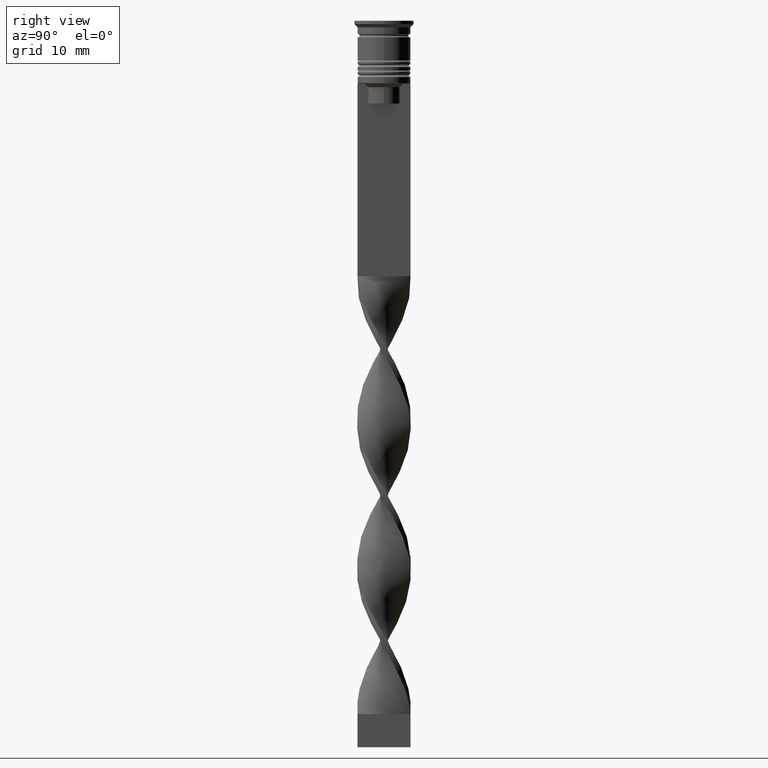
[diagram: clean part render]
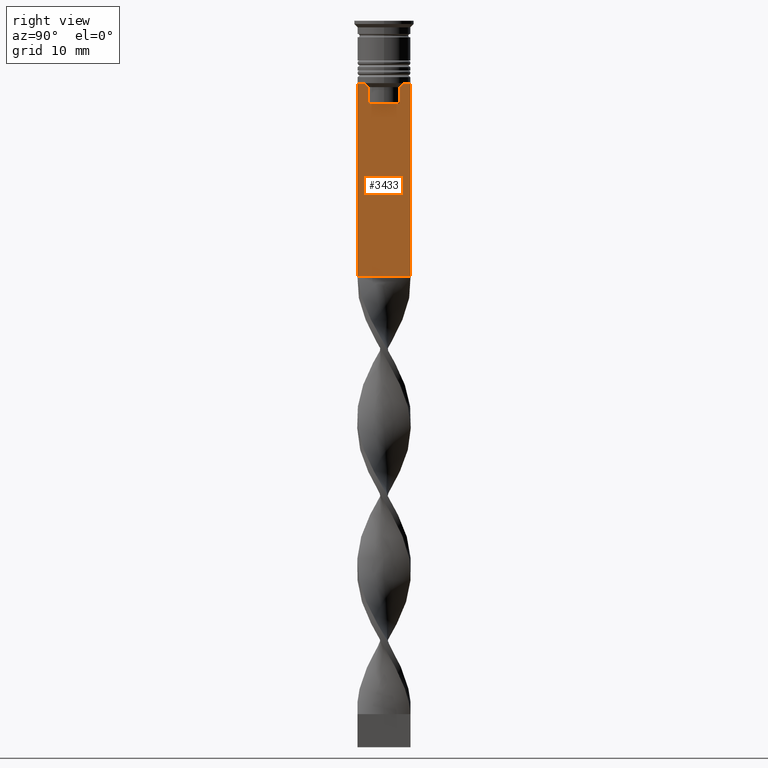
[diagram: same view with one face highlighted and labeled with its STEP entity id]
A machine part, right view. The second image highlights one B-rep face of the part: STEP entity #3433.
In plain terms, the highlighted planar face has unit normal (-1, 0, 0).
Its self-contained STEP definition (entity closure, byte-faithful):
#48 = VECTOR ( 'NONE', #748, 1000.000000000000000 ) ;
#78 = DIRECTION ( 'NONE',  ( 0.000000000000000000, -1.000000000000000000, 0.000000000000000000 ) ) ;
#106 = DIRECTION ( 'NONE',  ( -1.000000000000000000, 0.000000000000000000, 0.000000000000000000 ) ) ;
#226 = CARTESIAN_POINT ( 'NONE',  ( 0.5000000000000000000, -3.867815921162741422, -9.500000000000000000 ) ) ;
#238 = VERTEX_POINT ( 'NONE', #662 ) ;
#242 = CARTESIAN_POINT ( 'NONE',  ( 0.5000000000000000000, -2.347338918861097135, -12.50000000000000000 ) ) ;
#336 = ORIENTED_EDGE ( 'NONE', *, *, #2597, .T. ) ;
#367 = LINE ( 'NONE', #2632, #2457 ) ;
#412 = CARTESIAN_POINT ( 'NONE',  ( 0.5000000000000000000, -2.347338918861097135, 0.000000000000000000 ) ) ;
#421 = CARTESIAN_POINT ( 'NONE',  ( 0.5000000000000000000, 2.347338918861097135, -10.00000000000000000 ) ) ;
#456 = DIRECTION ( 'NONE',  ( 0.000000000000000000, 0.000000000000000000, -1.000000000000000000 ) ) ;
#457 = VECTOR ( 'NONE', #2958, 1000.000000000000000 ) ;
#464 = VERTEX_POINT ( 'NONE', #1693 ) ;
#474 = CARTESIAN_POINT ( 'NONE',  ( 0.5000000000000000000, 2.856571371417138572, -9.500000000000000000 ) ) ;
#506 = VECTOR ( 'NONE', #933, 1000.000000000000000 ) ;
#602 = LINE ( 'NONE', #1554, #2709 ) ;
#610 = ORIENTED_EDGE ( 'NONE', *, *, #1739, .T. ) ;
#662 = CARTESIAN_POINT ( 'NONE',  ( 0.5000000000000000000, -2.856571371417138572, -9.500000000000000000 ) ) ;
#746 = ORIENTED_EDGE ( 'NONE', *, *, #2502, .T. ) ;
#748 = DIRECTION ( 'NONE',  ( 0.000000000000000000, -1.000000000000000000, 0.000000000000000000 ) ) ;
#759 = LINE ( 'NONE', #3017, #1933 ) ;
#820 = ORIENTED_EDGE ( 'NONE', *, *, #2603, .T. ) ;
#882 = CARTESIAN_POINT ( 'NONE',  ( 0.5000000000000000000, 4.000000000000000000, -38.50000000000000000 ) ) ;
#901 = EDGE_CURVE ( 'NONE', #1787, #2049, #1862, .T. ) ;
#933 = DIRECTION ( 'NONE',  ( 0.000000000000000000, 0.000000000000000000, -1.000000000000000000 ) ) ;
#965 = VERTEX_POINT ( 'NONE', #1192 ) ;
#967 = VERTEX_POINT ( 'NONE', #1544 ) ;
#979 = EDGE_CURVE ( 'NONE', #2432, #464, #1810, .T. ) ;
#1033 = CARTESIAN_POINT ( 'NONE',  ( 0.5000000000000000000, -2.517408374291112416, -9.833662228483172285 ) ) ;
#1083 = CARTESIAN_POINT ( 'NONE',  ( 0.5000000000000000000, 2.517407211010872281, -9.833663366238582171 ) ) ;
#1099 = CARTESIAN_POINT ( 'NONE',  ( 0.5000000000000000000, 2.687094542495898075, -9.666938847453439010 ) ) ;
#1141 = LINE ( 'NONE', #1470, #506 ) ;
#1153 = VECTOR ( 'NONE', #1272, 1000.000000000000000 ) ;
#1192 = CARTESIAN_POINT ( 'NONE',  ( 0.5000000000000000000, 2.347338918861097135, -12.50000000000000000 ) ) ;
#1272 = DIRECTION ( 'NONE',  ( 0.000000000000000000, -1.000000000000000000, 0.000000000000000000 ) ) ;
#1285 = VERTEX_POINT ( 'NONE', #2917 ) ;
#1287 = DIRECTION ( 'NONE',  ( 0.000000000000000000, -1.000000000000000000, 0.000000000000000000 ) ) ;
#1306 = CARTESIAN_POINT ( 'NONE',  ( 0.5000000000000000000, -4.000000000000000000, -38.50000000000000000 ) ) ;
#1432 = VERTEX_POINT ( 'NONE', #226 ) ;
#1470 = CARTESIAN_POINT ( 'NONE',  ( 0.5000000000000000000, 2.347338918861097135, 0.000000000000000000 ) ) ;
#1530 = CARTESIAN_POINT ( 'NONE',  ( 0.5000000000000000000, -4.000000000000000000, -38.50000000000000000 ) ) ;
#1544 = CARTESIAN_POINT ( 'NONE',  ( 0.5000000000000000000, -4.000000000000000000, -9.500000000000000000 ) ) ;
#1554 = CARTESIAN_POINT ( 'NONE',  ( 0.5000000000000000000, 4.000000000000000000, -1.437742251701450202 ) ) ;
#1556 = CARTESIAN_POINT ( 'NONE',  ( 0.5000000000000000000, -4.000000000000000000, -9.500000000000000000 ) ) ;
#1581 = LINE ( 'NONE', #1556, #2182 ) ;
#1596 = VECTOR ( 'NONE', #456, 1000.000000000000000 ) ;
#1624 = LINE ( 'NONE', #2475, #1596 ) ;
#1671 = EDGE_CURVE ( 'NONE', #1285, #2049, #602, .T. ) ;
#1693 = CARTESIAN_POINT ( 'NONE',  ( 0.5000000000000000000, 2.856571371417138572, -9.500000000000000000 ) ) ;
#1739 = EDGE_CURVE ( 'NONE', #238, #1432, #367, .T. ) ;
#1754 = VECTOR ( 'NONE', #2096, 1000.000000000000000 ) ;
#1787 = VERTEX_POINT ( 'NONE', #1530 ) ;
#1789 = ORIENTED_EDGE ( 'NONE', *, *, #1671, .F. ) ;
#1810 = LINE ( 'NONE', #2685, #1153 ) ;
#1847 = VERTEX_POINT ( 'NONE', #2427 ) ;
#1862 = LINE ( 'NONE', #1306, #1754 ) ;
#1887 = B_SPLINE_CURVE_WITH_KNOTS ( 'NONE', 3,
 ( #1901, #1033, #3576, #2216 ),
 .UNSPECIFIED., .F., .F.,
 ( 4, 4 ),
 ( 0.01178336557230038467, 0.01249758354768160280 ),
 .UNSPECIFIED. ) ;
#1901 = CARTESIAN_POINT ( 'NONE',  ( 0.5000000000000000000, -2.347338918861097135, -10.00000000000000000 ) ) ;
#1933 = VECTOR ( 'NONE', #1287, 1000.000000000000000 ) ;
#2049 = VERTEX_POINT ( 'NONE', #882 ) ;
#2052 = FACE_OUTER_BOUND ( 'NONE', #2509, .T. ) ;
#2066 = DIRECTION ( 'NONE',  ( 0.000000000000000000, 0.000000000000000000, -1.000000000000000000 ) ) ;
#2096 = DIRECTION ( 'NONE',  ( 0.000000000000000000, 1.000000000000000000, 0.000000000000000000 ) ) ;
#2098 = PLANE ( 'NONE',  #2718 ) ;
#2132 = DIRECTION ( 'NONE',  ( 0.000000000000000000, 0.000000000000000000, 1.000000000000000000 ) ) ;
#2142 = ORIENTED_EDGE ( 'NONE', *, *, #979, .T. ) ;
#2165 = CARTESIAN_POINT ( 'NONE',  ( 0.5000000000000000000, 2.347338918861097135, -10.00000000000000000 ) ) ;
#2176 = VERTEX_POINT ( 'NONE', #242 ) ;
#2182 = VECTOR ( 'NONE', #2678, 1000.000000000000000 ) ;
#2216 = CARTESIAN_POINT ( 'NONE',  ( 0.5000000000000000000, -2.856571371417138572, -9.500000000000000000 ) ) ;
#2397 = CARTESIAN_POINT ( 'NONE',  ( 0.5000000000000000000, -4.000000000000000000, -1.437742251701450202 ) ) ;
#2427 = CARTESIAN_POINT ( 'NONE',  ( 0.5000000000000000000, -2.347338918861097135, -10.00000000000000000 ) ) ;
#2432 = VERTEX_POINT ( 'NONE', #3445 ) ;
#2457 = VECTOR ( 'NONE', #78, 1000.000000000000000 ) ;
#2470 = LINE ( 'NONE', #2724, #48 ) ;
#2475 = CARTESIAN_POINT ( 'NONE',  ( 0.5000000000000000000, -4.000000000000000000, -1.437742251701450202 ) ) ;
#2502 = EDGE_CURVE ( 'NONE', #2932, #965, #1141, .T. ) ;
#2504 = ORIENTED_EDGE ( 'NONE', *, *, #3137, .T. ) ;
#2509 = EDGE_LOOP ( 'NONE', ( #2142, #2504, #746, #3349, #336, #2677, #610, #820, #3555, #3147, #1789, #2667 ) ) ;
#2597 = EDGE_CURVE ( 'NONE', #2176, #1847, #2933, .T. ) ;
#2603 = EDGE_CURVE ( 'NONE', #1432, #967, #1581, .T. ) ;
#2632 = CARTESIAN_POINT ( 'NONE',  ( 0.5000000000000000000, -4.000000000000000000, -9.500000000000000000 ) ) ;
#2667 = ORIENTED_EDGE ( 'NONE', *, *, #3332, .T. ) ;
#2677 = ORIENTED_EDGE ( 'NONE', *, *, #3116, .T. ) ;
#2678 = DIRECTION ( 'NONE',  ( 0.000000000000000000, -1.000000000000000000, 0.000000000000000000 ) ) ;
#2685 = CARTESIAN_POINT ( 'NONE',  ( 0.5000000000000000000, -4.000000000000000000, -9.500000000000000000 ) ) ;
#2709 = VECTOR ( 'NONE', #2066, 1000.000000000000000 ) ;
#2718 = AXIS2_PLACEMENT_3D ( 'NONE', #2397, #106, #2132 ) ;
#2724 = CARTESIAN_POINT ( 'NONE',  ( 0.5000000000000000000, -4.000000000000000000, -9.500000000000000000 ) ) ;
#2909 = B_SPLINE_CURVE_WITH_KNOTS ( 'NONE', 3,
 ( #474, #1099, #1083, #2165 ),
 .UNSPECIFIED., .F., .F.,
 ( 4, 4 ),
 ( 0.004956812174141191595, 0.005670477137898149653 ),
 .UNSPECIFIED. ) ;
#2917 = CARTESIAN_POINT ( 'NONE',  ( 0.5000000000000000000, 4.000000000000000000, -9.500000000000000000 ) ) ;
#2932 = VERTEX_POINT ( 'NONE', #421 ) ;
#2933 = LINE ( 'NONE', #412, #457 ) ;
#2958 = DIRECTION ( 'NONE',  ( -0.000000000000000000, -0.000000000000000000, 1.000000000000000000 ) ) ;
#3017 = CARTESIAN_POINT ( 'NONE',  ( 0.5000000000000000000, 2.399999999999996803, -12.50000000000000000 ) ) ;
#3067 = EDGE_CURVE ( 'NONE', #967, #1787, #1624, .T. ) ;
#3116 = EDGE_CURVE ( 'NONE', #1847, #238, #1887, .T. ) ;
#3137 = EDGE_CURVE ( 'NONE', #464, #2932, #2909, .T. ) ;
#3147 = ORIENTED_EDGE ( 'NONE', *, *, #901, .T. ) ;
#3332 = EDGE_CURVE ( 'NONE', #1285, #2432, #2470, .T. ) ;
#3349 = ORIENTED_EDGE ( 'NONE', *, *, #3647, .T. ) ;
#3433 = ADVANCED_FACE ( 'NONE', ( #2052 ), #2098, .F. ) ;
#3445 = CARTESIAN_POINT ( 'NONE',  ( 0.5000000000000000000, 3.867815921162741422, -9.500000000000000000 ) ) ;
#3555 = ORIENTED_EDGE ( 'NONE', *, *, #3067, .T. ) ;
#3576 = CARTESIAN_POINT ( 'NONE',  ( 0.5000000000000000000, -2.687095498514037839, -9.666937905752043037 ) ) ;
#3647 = EDGE_CURVE ( 'NONE', #965, #2176, #759, .T. ) ;